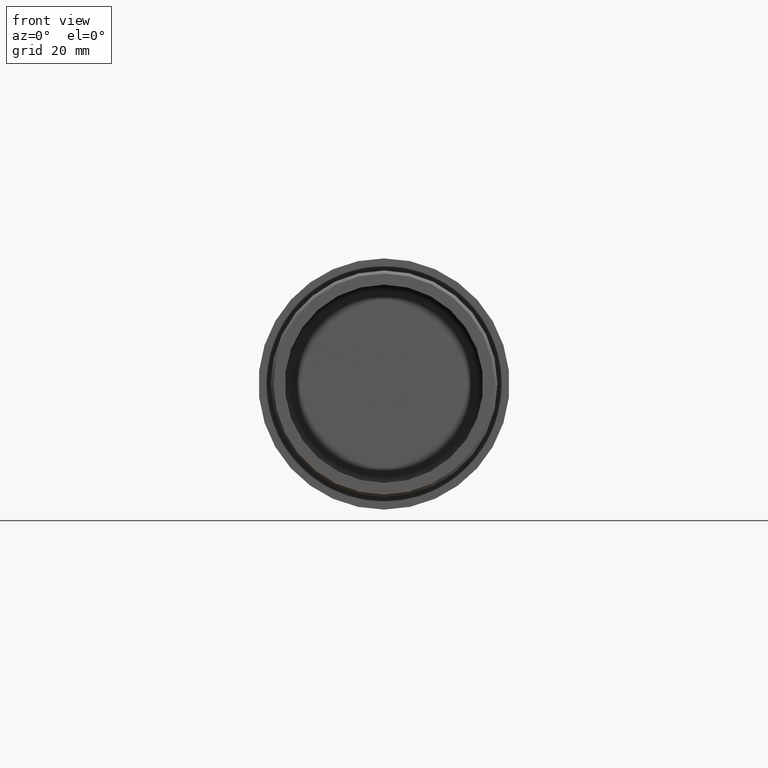
[diagram: clean part render]
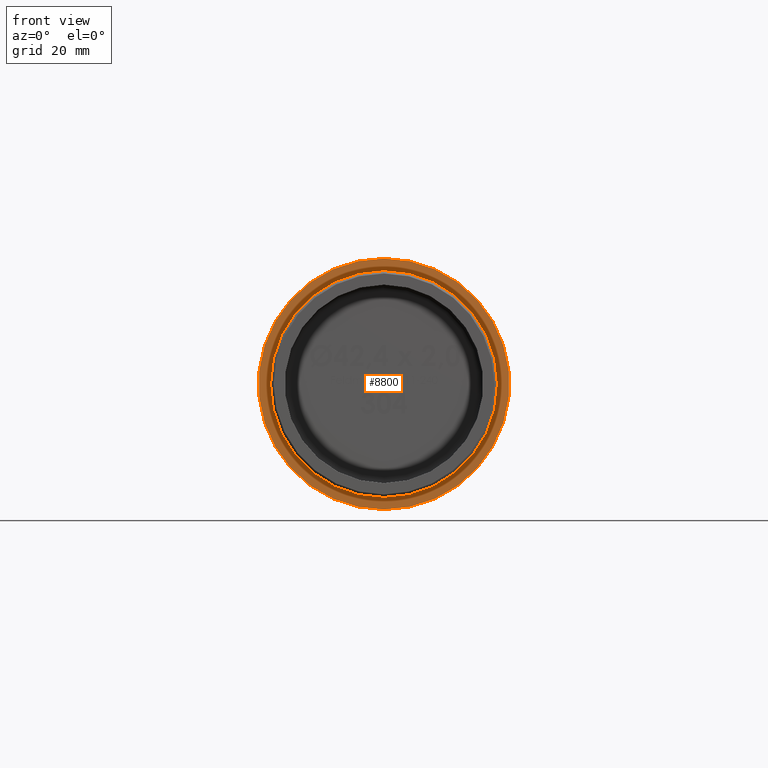
[diagram: same view with one face highlighted and labeled with its STEP entity id]
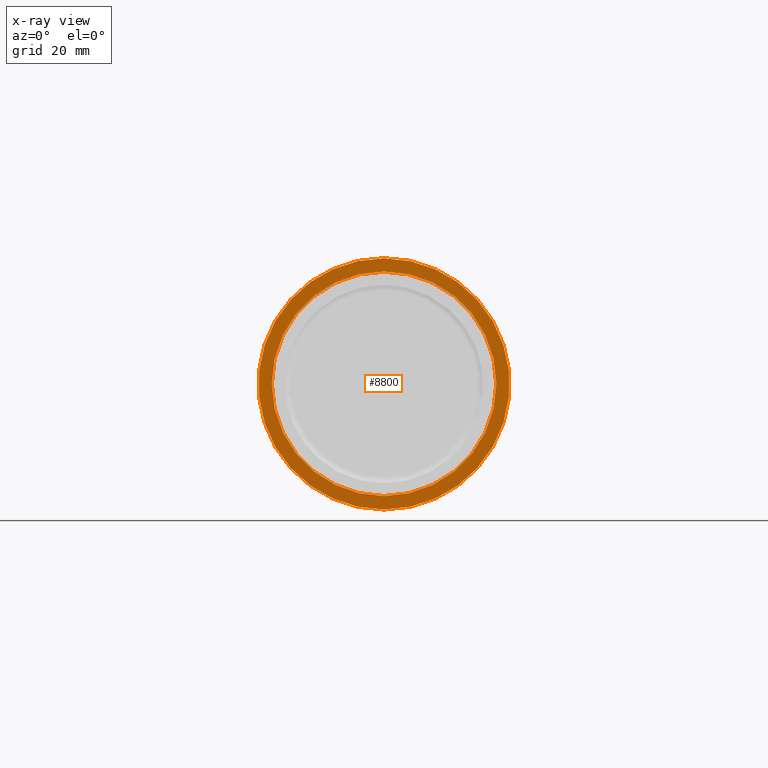
[diagram: x-ray of the same camera — body ghosted, the highlighted face saturated]
A machine part, front view. The second image highlights one B-rep face of the part: STEP entity #8800.
The next image is the same camera in x-ray: the body ghosted, the highlighted face saturated — about 8% of this face is hidden behind the body in this view.
In plain terms, the highlighted planar face has unit normal (0, -1, -0).
Its self-contained STEP definition (entity closure, byte-faithful):
#234 = AXIS2_PLACEMENT_3D ( 'NONE', #8022, #18883, #11087 ) ;
#278 = CARTESIAN_POINT ( 'NONE',  ( 21.19999999999999900, 30.00000000000000000, 0.0000000000000000000 ) ) ;
#1453 = CIRCLE ( 'NONE', #234, 18.94999999999999900 ) ;
#1626 = ORIENTED_EDGE ( 'NONE', *, *, #10857, .T. ) ;
#1705 = DIRECTION ( 'NONE',  ( 0.0000000000000000000, 0.0000000000000000000, -1.000000000000000000 ) ) ;
#2355 = EDGE_LOOP ( 'NONE', ( #19740, #1626 ) ) ;
#3145 = EDGE_CURVE ( 'NONE', #11637, #12545, #15197, .T. ) ;
#3223 = ORIENTED_EDGE ( 'NONE', *, *, #9705, .F. ) ;
#3239 = CARTESIAN_POINT ( 'NONE',  ( 2.320705684384234300E-015, 30.00000000000000000, 18.94999999999999900 ) ) ;
#3448 = DIRECTION ( 'NONE',  ( 0.0000000000000000000, -1.000000000000000000, -0.0000000000000000000 ) ) ;
#3475 = DIRECTION ( 'NONE',  ( -0.0000000000000000000, -1.000000000000000000, -0.0000000000000000000 ) ) ;
#3560 = DIRECTION ( 'NONE',  ( 0.0000000000000000000, 0.0000000000000000000, -1.000000000000000000 ) ) ;
#4261 = CIRCLE ( 'NONE', #11121, 21.19999999999999900 ) ;
#4811 = CIRCLE ( 'NONE', #16481, 21.19999999999999900 ) ;
#4943 = CARTESIAN_POINT ( 'NONE',  ( 0.0000000000000000000, 30.00000000000000400, 0.0000000000000000000 ) ) ;
#4979 = DIRECTION ( 'NONE',  ( 0.0000000000000000000, 0.0000000000000000000, -1.000000000000000000 ) ) ;
#6292 = VERTEX_POINT ( 'NONE', #15279 ) ;
#7939 = CARTESIAN_POINT ( 'NONE',  ( 0.0000000000000000000, 30.00000000000000400, 0.0000000000000000000 ) ) ;
#8022 = CARTESIAN_POINT ( 'NONE',  ( 0.0000000000000000000, 30.00000000000000000, 0.0000000000000000000 ) ) ;
#8800 = ADVANCED_FACE ( 'NONE', ( #11030, #19611 ), #12600, .T. ) ;
#9705 = EDGE_CURVE ( 'NONE', #12545, #11637, #1453, .T. ) ;
#10857 = EDGE_CURVE ( 'NONE', #6292, #13468, #4261, .T. ) ;
#11005 = DIRECTION ( 'NONE',  ( -0.0000000000000000000, -1.000000000000000000, -0.0000000000000000000 ) ) ;
#11030 = FACE_OUTER_BOUND ( 'NONE', #2355, .T. ) ;
#11087 = DIRECTION ( 'NONE',  ( 0.0000000000000000000, 0.0000000000000000000, -1.000000000000000000 ) ) ;
#11121 = AXIS2_PLACEMENT_3D ( 'NONE', #7939, #11005, #1705 ) ;
#11289 = ORIENTED_EDGE ( 'NONE', *, *, #3145, .F. ) ;
#11637 = VERTEX_POINT ( 'NONE', #16945 ) ;
#12545 = VERTEX_POINT ( 'NONE', #3239 ) ;
#12600 = PLANE ( 'NONE',  #14944 ) ;
#12850 = DIRECTION ( 'NONE',  ( -0.0000000000000000000, -1.000000000000000000, -0.0000000000000000000 ) ) ;
#13468 = VERTEX_POINT ( 'NONE', #16552 ) ;
#14271 = EDGE_CURVE ( 'NONE', #13468, #6292, #4811, .T. ) ;
#14355 = EDGE_LOOP ( 'NONE', ( #11289, #3223 ) ) ;
#14522 = CARTESIAN_POINT ( 'NONE',  ( 0.0000000000000000000, 30.00000000000000000, 0.0000000000000000000 ) ) ;
#14944 = AXIS2_PLACEMENT_3D ( 'NONE', #278, #3448, #4979 ) ;
#15197 = CIRCLE ( 'NONE', #19597, 18.94999999999999900 ) ;
#15279 = CARTESIAN_POINT ( 'NONE',  ( 2.596251214192388800E-015, 30.00000000000000400, 21.19999999999999900 ) ) ;
#15590 = DIRECTION ( 'NONE',  ( 0.0000000000000000000, 0.0000000000000000000, -1.000000000000000000 ) ) ;
#16481 = AXIS2_PLACEMENT_3D ( 'NONE', #4943, #3475, #15590 ) ;
#16552 = CARTESIAN_POINT ( 'NONE',  ( 0.0000000000000000000, 30.00000000000000400, -21.19999999999999900 ) ) ;
#16945 = CARTESIAN_POINT ( 'NONE',  ( 0.0000000000000000000, 30.00000000000000000, -18.94999999999999900 ) ) ;
#18883 = DIRECTION ( 'NONE',  ( -0.0000000000000000000, -1.000000000000000000, -0.0000000000000000000 ) ) ;
#19597 = AXIS2_PLACEMENT_3D ( 'NONE', #14522, #12850, #3560 ) ;
#19611 = FACE_BOUND ( 'NONE', #14355, .T. ) ;
#19740 = ORIENTED_EDGE ( 'NONE', *, *, #14271, .T. ) ;